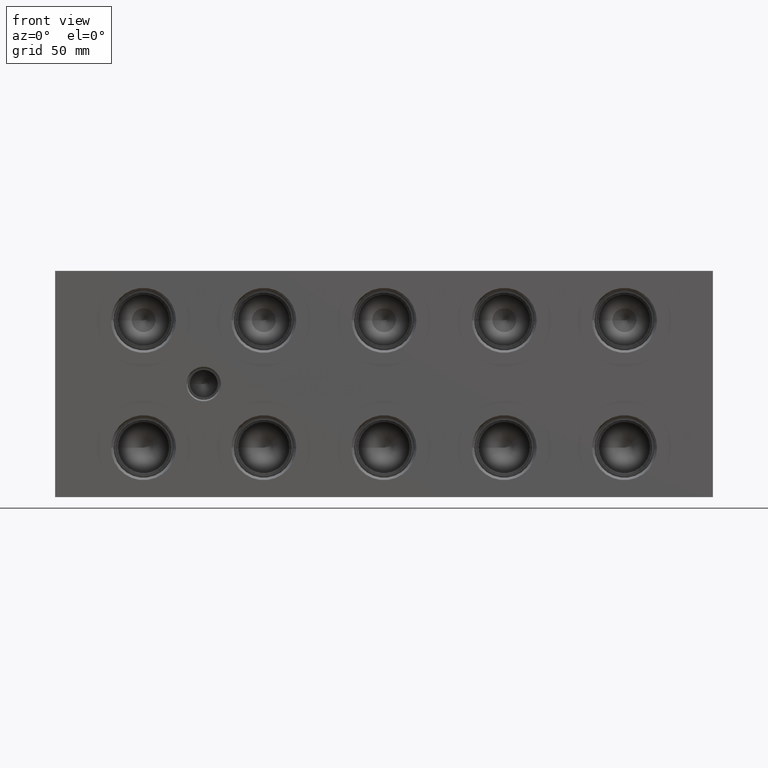
[diagram: clean part render]
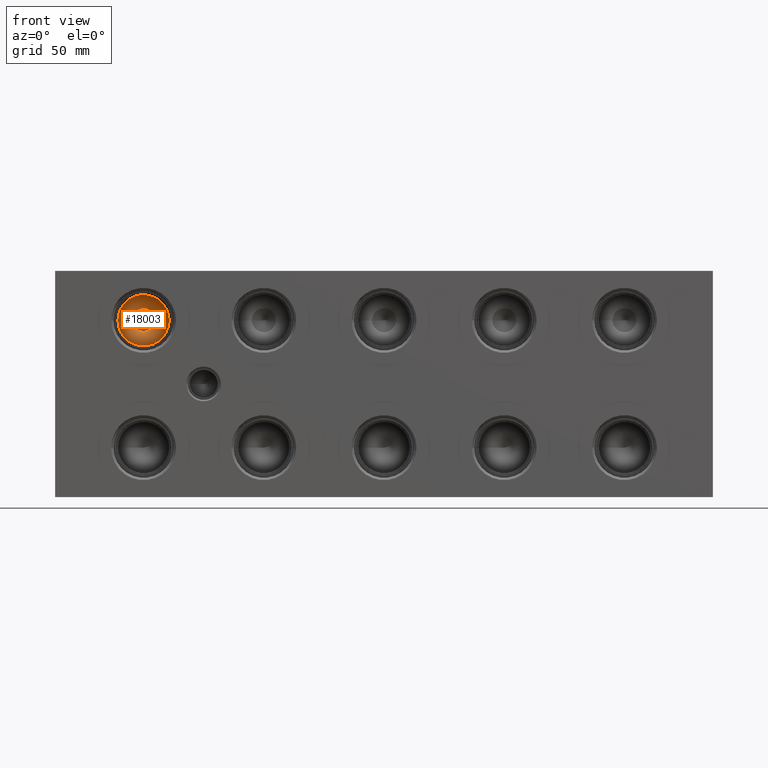
[diagram: same view with one face highlighted and labeled with its STEP entity id]
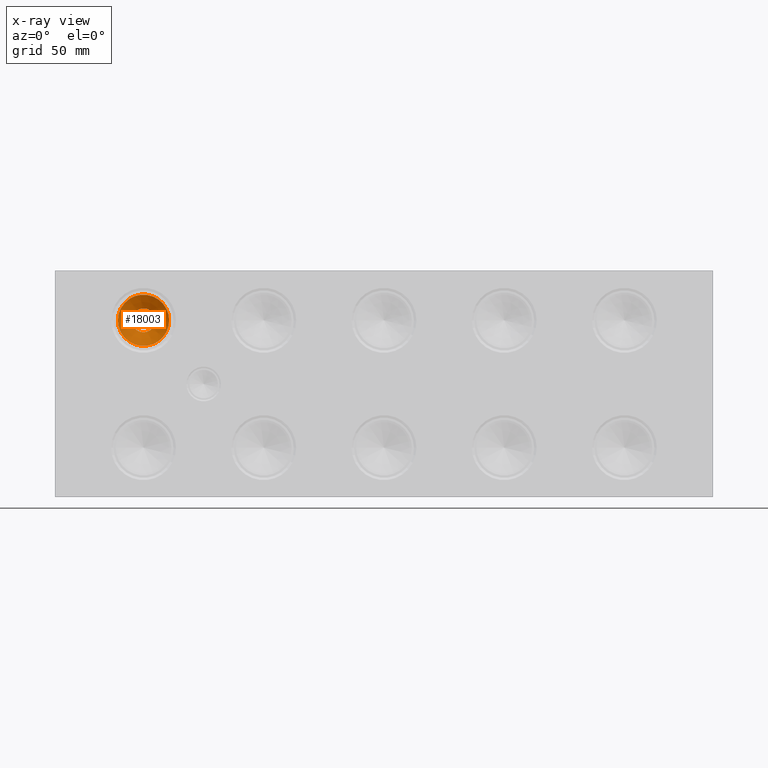
[diagram: x-ray of the same camera — body ghosted, the highlighted face saturated]
A machine part, front view. The second image highlights one B-rep face of the part: STEP entity #18003.
The next image is the same camera in x-ray: the body ghosted, the highlighted face saturated — about 0% of this face is hidden behind the body in this view.
In plain terms, the highlighted conical surface has half-angle 60 deg.
Its self-contained STEP definition (entity closure, byte-faithful):
#103=CONICAL_SURFACE('',#19212,5.7531,1.0471975511966);
#948=CIRCLE('',#19211,5.3594);
#949=CIRCLE('',#19213,11.5062);
#950=CIRCLE('',#19214,11.5062);
#2516=FACE_OUTER_BOUND('',#3578,.T.);
#3578=EDGE_LOOP('',(#15586,#15587,#15588,#15589,#15590));
#5187=LINE('',#31086,#6717);
#6717=VECTOR('',#23104,5.7531);
#8411=VERTEX_POINT('',#31079);
#8412=VERTEX_POINT('',#31083);
#8413=VERTEX_POINT('',#31084);
#10870=EDGE_CURVE('',#8411,#8411,#948,.T.);
#10872=EDGE_CURVE('',#8412,#8413,#949,.T.);
#10873=EDGE_CURVE('',#8413,#8411,#5187,.T.);
#10874=EDGE_CURVE('',#8413,#8412,#950,.T.);
#15586=ORIENTED_EDGE('',*,*,#10872,.T.);
#15587=ORIENTED_EDGE('',*,*,#10873,.T.);
#15588=ORIENTED_EDGE('',*,*,#10870,.T.);
#15589=ORIENTED_EDGE('',*,*,#10873,.F.);
#15590=ORIENTED_EDGE('',*,*,#10874,.T.);
#18003=ADVANCED_FACE('',(#2516),#103,.F.);
#19211=AXIS2_PLACEMENT_3D('',#31080,#23097,#23098);
#19212=AXIS2_PLACEMENT_3D('',#31082,#23100,#23101);
#19213=AXIS2_PLACEMENT_3D('',#31085,#23102,#23103);
#19214=AXIS2_PLACEMENT_3D('',#31087,#23105,#23106);
#23097=DIRECTION('center_axis',(0.,1.,0.));
#23098=DIRECTION('ref_axis',(1.,0.,0.));
#23100=DIRECTION('center_axis',(0.,-1.,0.));
#23101=DIRECTION('ref_axis',(1.,0.,0.));
#23102=DIRECTION('center_axis',(0.,-1.,0.));
#23103=DIRECTION('ref_axis',(1.,0.,0.));
#23104=DIRECTION('',(0.866025403784439,0.5,1.06057523872491E-16));
#23105=DIRECTION('center_axis',(0.,-1.,0.));
#23106=DIRECTION('ref_axis',(1.,0.,0.));
#31079=CARTESIAN_POINT('',(34.3154,31.7174566346548,79.375));
#31080=CARTESIAN_POINT('Origin',(39.6748,31.7174566346548,79.375));
#31082=CARTESIAN_POINT('Origin',(39.6748,31.4901538336748,79.375));
#31083=CARTESIAN_POINT('',(51.181,28.1686,79.375));
#31084=CARTESIAN_POINT('',(28.1686,28.1686,79.375));
#31085=CARTESIAN_POINT('Origin',(39.6748,28.1686,79.375));
#31086=CARTESIAN_POINT('',(33.9217,31.4901538336748,79.375));
#31087=CARTESIAN_POINT('Origin',(39.6748,28.1686,79.375));